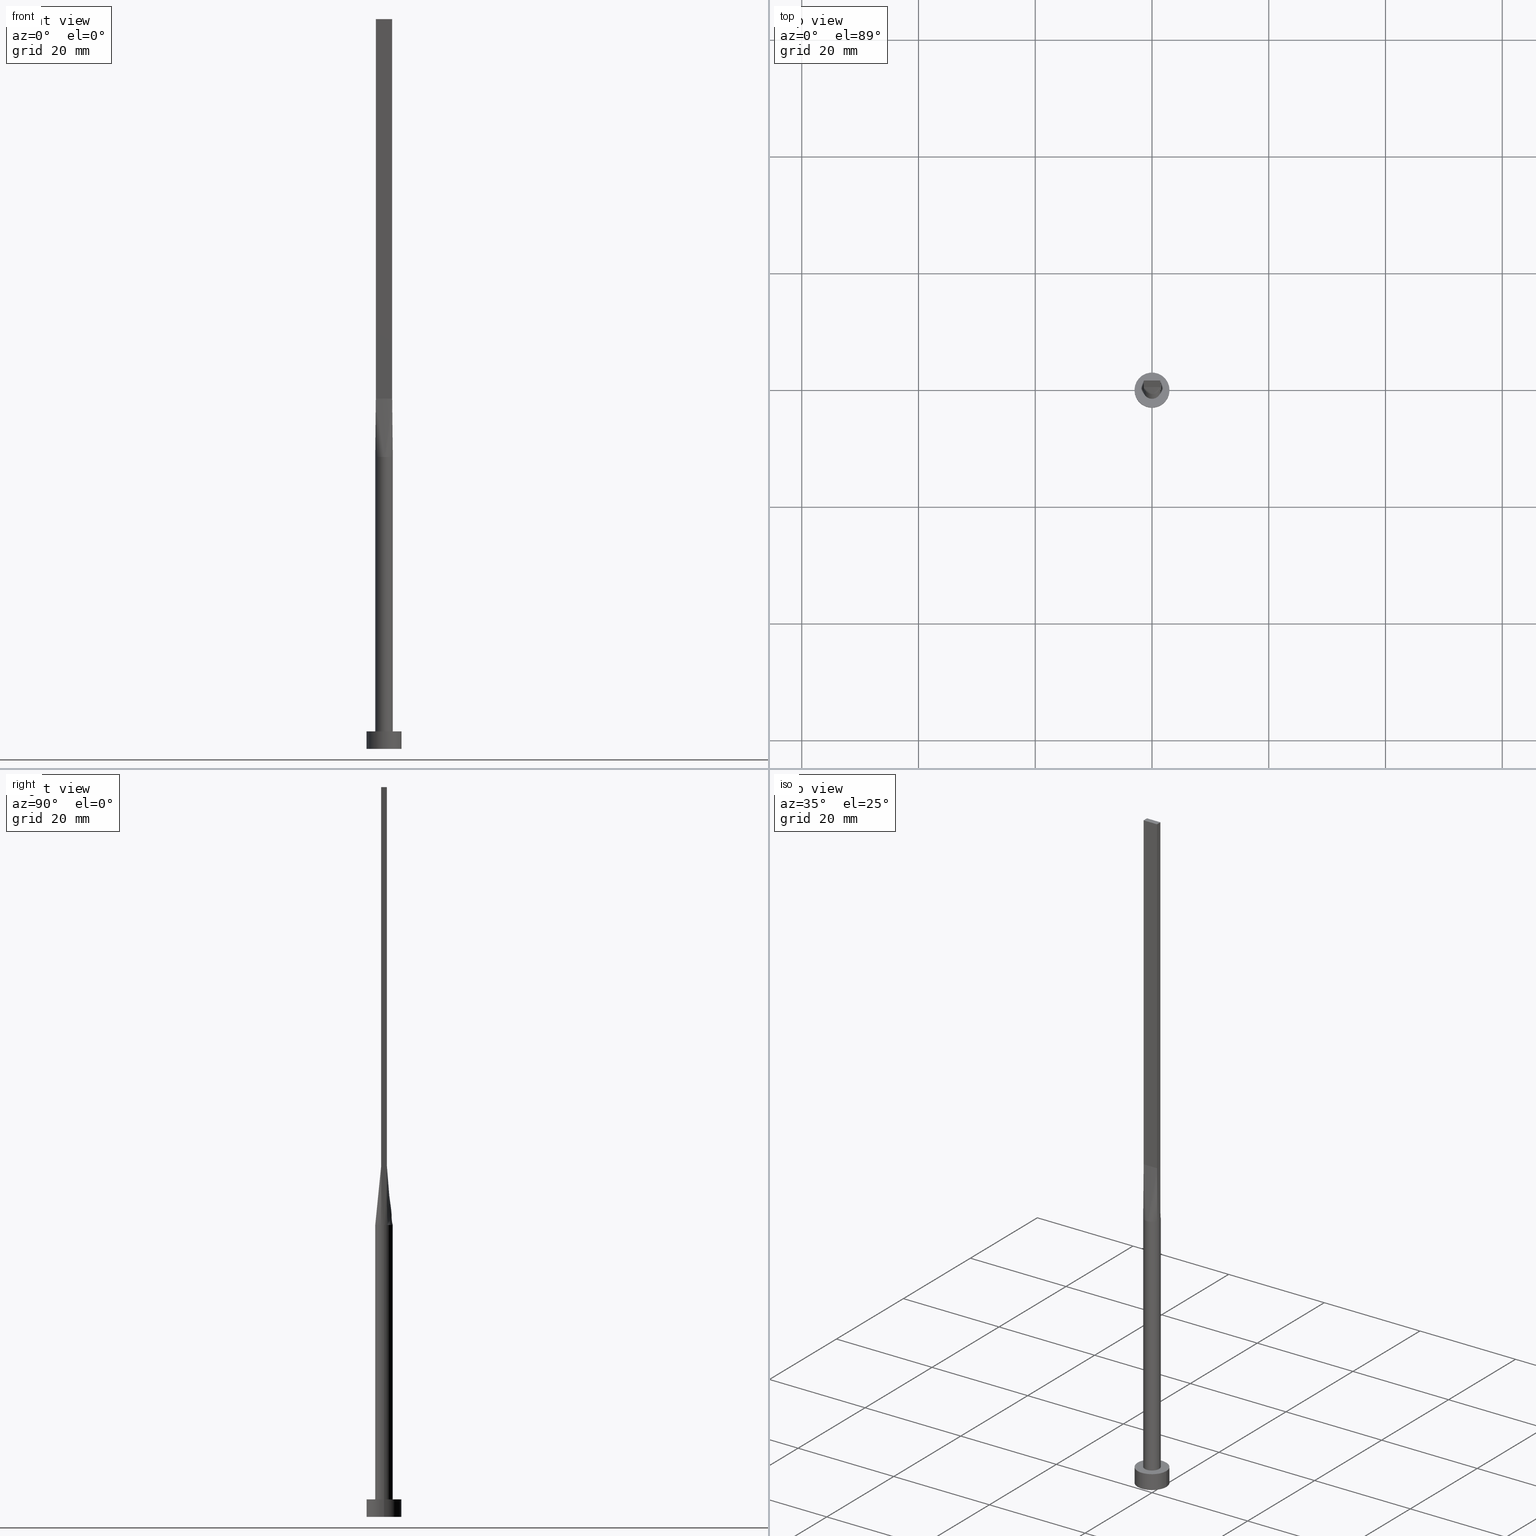
[diagram: canonical four-view strip — front | top / right | iso, engineering-drawing reading convention]
A machine part, canonical four-view strip (front | top / right | iso — engineering-drawing reading convention). The complete STEP part file that produces these views, byte-faithful:
ISO-10303-21;
HEADER;
FILE_DESCRIPTION (( 'STEP AP203' ),
    '1' );
FILE_NAME ('94df.STEP',
    '2026-02-12T09:07:50',
    ( '' ),
    ( '' ),
    'SwSTEP 2.0',
    'SolidWorks 2019',
    '' );
FILE_SCHEMA (( 'CONFIG_CONTROL_DESIGN' ));
ENDSEC;

DATA;
#1 = PRODUCT_DEFINITION ( 'NEZN�M�', '', #343, #422 ) ;
#2 = ORIENTED_EDGE ( 'NONE', *, *, #560, .T. ) ;
#3 = CARTESIAN_POINT ( 'NONE',  ( 3.000000000000000444, 3.673940397442060361E-16, 0.000000000000000000 ) ) ;
#4 = EDGE_CURVE ( 'NONE', #371, #410, #100, .T. ) ;
#5 = CARTESIAN_POINT ( 'NONE',  ( 0.000000000000000000, 0.000000000000000000, 3.000000000000000000 ) ) ;
#6 = DIRECTION ( 'NONE',  ( -0.000000000000000000, -0.000000000000000000, -1.000000000000000000 ) ) ;
#7 = DIRECTION ( 'NONE',  ( -2.168404344971009361E-16, -1.000000000000000000, 0.000000000000000000 ) ) ;
#8 = DIRECTION ( 'NONE',  ( 0.000000000000000000, 0.000000000000000000, 1.000000000000000000 ) ) ;
#9 = B_SPLINE_SURFACE_WITH_KNOTS ( 'NONE', 3, 1, ( 
 ( #412, #142 ),
 ( #237, #556 ),
 ( #18, #155 ),
 ( #194, #285 ),
 ( #373, #550 ),
 ( #58, #415 ) ),
 .UNSPECIFIED., .F., .F., .F.,
 ( 4, 2, 4 ),
 ( 2, 2 ),
 ( 0.000000000000000000, 0.5000000000000000000, 1.000000000000000000 ),
 ( 0.000000000000000000, 1.000000000000000000 ),
 .UNSPECIFIED. ) ;
#10 = PLANE ( 'NONE',  #75 ) ;
#11 = CARTESIAN_POINT ( 'NONE',  ( 0.000000000000000000, 0.000000000000000000, 50.00000000000000000 ) ) ;
#12 = VECTOR ( 'NONE', #84, 1000.000000000000114 ) ;
#13 = DIRECTION ( 'NONE',  ( -1.000000000000000000, 7.744301232039316681E-17, 0.000000000000000000 ) ) ;
#14 = DATE_TIME_ROLE ( 'classification_date' ) ;
#15 = VERTEX_POINT ( 'NONE', #366 ) ;
#16 = ORIENTED_EDGE ( 'NONE', *, *, #116, .T. ) ;
#17 = CARTESIAN_POINT ( 'NONE',  ( -1.399999999999999689, 0.3333333333333335369, 60.00000000000000000 ) ) ;
#18 = CARTESIAN_POINT ( 'NONE',  ( 1.500000000000000222, -0.1732137494637014941, 50.00000000000000711 ) ) ;
#19 = CARTESIAN_POINT ( 'NONE',  ( 0.000000000000000000, 0.000000000000000000, 50.00000000000000000 ) ) ;
#20 = CARTESIAN_POINT ( 'NONE',  ( 0.8182264876570948253, 1.266912425724810110, 50.00000000000000711 ) ) ;
#21 = DIRECTION ( 'NONE',  ( 1.000000000000000000, 0.000000000000000000, 0.000000000000000000 ) ) ;
#22 = DIRECTION ( 'NONE',  ( 0.000000000000000000, 0.000000000000000000, 1.000000000000000000 ) ) ;
#23 = ORIENTED_EDGE ( 'NONE', *, *, #517, .F. ) ;
#24 = CARTESIAN_POINT ( 'NONE',  ( 0.2333333333333338089, 0.5000000000000002220, 60.00000000000000000 ) ) ;
#25 = EDGE_CURVE ( 'NONE', #80, #444, #497, .T. ) ;
#26 = ORIENTED_EDGE ( 'NONE', *, *, #44, .T. ) ;
#27 = DIRECTION ( 'NONE',  ( 0.000000000000000000, 0.000000000000000000, 1.000000000000000000 ) ) ;
#28 = CARTESIAN_POINT ( 'NONE',  ( -1.161819288130433891, 0.9587178835757675932, 50.00000000000002842 ) ) ;
#29 = EDGE_LOOP ( 'NONE', ( #426, #453, #563, #175 ) ) ;
#30 = DIRECTION ( 'NONE',  ( -0.001261285608005553900, -0.0004504591457162553103, -0.9999991031221843185 ) ) ;
#31 = CARTESIAN_POINT ( 'NONE',  ( -1.373020107211261331, 0.6153643240040217455, 50.00000000000000711 ) ) ;
#32 = B_SPLINE_CURVE_WITH_KNOTS ( 'NONE', 3,
 ( #299, #473, #255, #524, #214, #78, #119, #73, #40, #301, #313, #572, #41, #358, #220, #177, #176, #570 ),
 .UNSPECIFIED., .F., .F.,
 ( 4, 2, 2, 2, 2, 2, 2, 2, 4 ),
 ( 0.000000000000000000, 0.1250000000000000000, 0.2500000000000000000, 0.3750000000000000000, 0.5000000000000000000, 0.6250000000000000000, 0.7500000000000000000, 0.8750000000000000000, 1.000000000000000000 ),
 .UNSPECIFIED. ) ;
#33 = VECTOR ( 'NONE', #529, 1000.000000000000000 ) ;
#34 = CARTESIAN_POINT ( 'NONE',  ( 0.1166666666666654889, -0.4999999999999995559, 60.00000000000000000 ) ) ;
#35 = CC_DESIGN_PERSON_AND_ORGANIZATION_ASSIGNMENT ( #329, #555, ( #138 ) ) ;
#36 = CARTESIAN_POINT ( 'NONE',  ( -1.316960349798174557, -0.7311494208568978248, 50.00000000000002842 ) ) ;
#37 = ORIENTED_EDGE ( 'NONE', *, *, #448, .T. ) ;
#38 = PLANE ( 'NONE',  #295 ) ;
#39 = CARTESIAN_POINT ( 'NONE',  ( 1.373020107211260665, -0.6153643240040224116, 50.00000000000000711 ) ) ;
#40 = CARTESIAN_POINT ( 'NONE',  ( 0.1761797990592590679, 1.500000000000000222, 50.00000000000000000 ) ) ;
#41 = CARTESIAN_POINT ( 'NONE',  ( -0.8182264876570950474, 1.266912425724810554, 50.00000000000000000 ) ) ;
#42 = DIRECTION ( 'NONE',  ( 0.000000000000000000, 0.000000000000000000, 1.000000000000000000 ) ) ;
#43 = CARTESIAN_POINT ( 'NONE',  ( -1.399999999999999911, -0.4999999999999995559, 125.0000000000000000 ) ) ;
#44 = EDGE_CURVE ( 'NONE', #80, #152, #56, .T. ) ;
#45 = CIRCLE ( 'NONE', #90, 1.500000000000000222 ) ;
#46 = LINE ( 'NONE', #269, #526 ) ;
#47 = CC_DESIGN_PERSON_AND_ORGANIZATION_ASSIGNMENT ( #150, #508, ( #1 ) ) ;
#48 = ORIENTED_EDGE ( 'NONE', *, *, #478, .T. ) ;
#49 = LINE ( 'NONE', #316, #309 ) ;
#50 = FACE_OUTER_BOUND ( 'NONE', #557, .T. ) ;
#51 = DIRECTION ( 'NONE',  ( -0.000000000000000000, -0.000000000000000000, -1.000000000000000000 ) ) ;
#52 = PERSON_AND_ORGANIZATION_ROLE ( 'classification_officer' ) ;
#53 = AXIS2_PLACEMENT_3D ( 'NONE', #67, #302, #250 ) ;
#54 = EDGE_LOOP ( 'NONE', ( #533, #512, #225, #340 ) ) ;
#55 = CARTESIAN_POINT ( 'NONE',  ( -1.399999999999999689, 0.5000000000000002220, 125.0000000000000000 ) ) ;
#56 = CIRCLE ( 'NONE', #312, 1.500000000000000222 ) ;
#57 = APPLICATION_PROTOCOL_DEFINITION ( 'international standard', 'config_control_design', 1994, #267 ) ;
#58 = CARTESIAN_POINT ( 'NONE',  ( 1.412612867392256222, 0.5045045954972349200, 50.00000000000000000 ) ) ;
#59 = ORIENTED_EDGE ( 'NONE', *, *, #122, .F. ) ;
#60 = CARTESIAN_POINT ( 'NONE',  ( 1.373020107211261109, 0.6153643240040217455, 50.00000000000000000 ) ) ;
#61 = ADVANCED_FACE ( 'NONE', ( #480 ), #38, .F. ) ;
#62 = VECTOR ( 'NONE', #488, 1000.000000000000000 ) ;
#63 = DIRECTION ( 'NONE',  ( 0.000000000000000000, 0.000000000000000000, 1.000000000000000000 ) ) ;
#64 = EDGE_LOOP ( 'NONE', ( #387, #554, #400, #112 ) ) ;
#65 = CARTESIAN_POINT ( 'NONE',  ( -0.3520402531411749858, 1.468082505288407891, 50.00000000000000711 ) ) ;
#66 = CARTESIAN_POINT ( 'NONE',  ( 1.283333333333333215, 0.5000000000000002220, 60.00000000000000711 ) ) ;
#67 = CARTESIAN_POINT ( 'NONE',  ( -1.399999999999999689, 0.5000000000000002220, 125.0000000000000000 ) ) ;
#68 = EDGE_CURVE ( 'NONE', #208, #371, #209, .T. ) ;
#69 = ORIENTED_EDGE ( 'NONE', *, *, #353, .F. ) ;
#70 = CARTESIAN_POINT ( 'NONE',  ( 0.1761797990592590679, 1.500000000000000222, 50.00000000000000000 ) ) ;
#71 = FACE_OUTER_BOUND ( 'NONE', #188, .T. ) ;
#72 = EDGE_CURVE ( 'NONE', #274, #539, #256, .T. ) ;
#73 = CARTESIAN_POINT ( 'NONE',  ( 0.3520402531411749303, 1.468082505288407447, 49.99999999999999289 ) ) ;
#74 = VECTOR ( 'NONE', #270, 1000.000000000000000 ) ;
#75 = AXIS2_PLACEMENT_3D ( 'NONE', #451, #408, #13 ) ;
#76 = CARTESIAN_POINT ( 'NONE',  ( -0.3520402531411755964, -1.468082505288407447, 49.99999999999999289 ) ) ;
#77 = CARTESIAN_POINT ( 'NONE',  ( -1.283333333333333437, -0.4999999999999995559, 60.00000000000000711 ) ) ;
#78 = CARTESIAN_POINT ( 'NONE',  ( 0.8182264876570948253, 1.266912425724810110, 50.00000000000000711 ) ) ;
#79 = APPROVAL_PERSON_ORGANIZATION ( #414, #421, #191 ) ;
#80 = VERTEX_POINT ( 'NONE', #481 ) ;
#81 = CARTESIAN_POINT ( 'NONE',  ( -1.399999999999999911, -0.4999999999999995559, 60.00000000000000711 ) ) ;
#82 = ORIENTED_EDGE ( 'NONE', *, *, #435, .T. ) ;
#83 = PLANE ( 'NONE',  #318 ) ;
#84 = DIRECTION ( 'NONE',  ( -0.001261285608005532216, 0.0004504591457163203624, 0.9999991031221843185 ) ) ;
#85 = MANIFOLD_SOLID_BREP ( 'P�idat vysunut�m5', #190 ) ;
#86 = ORIENTED_EDGE ( 'NONE', *, *, #442, .T. ) ;
#87 = DIRECTION ( 'NONE',  ( -1.000000000000000000, 0.000000000000000000, 0.000000000000000000 ) ) ;
#88 = FACE_OUTER_BOUND ( 'NONE', #235, .T. ) ;
#89 = ORIENTED_EDGE ( 'NONE', *, *, #448, .F. ) ;
#90 = AXIS2_PLACEMENT_3D ( 'NONE', #19, #196, #287 ) ;
#91 = ORIENTED_EDGE ( 'NONE', *, *, #68, .T. ) ;
#92 = CARTESIAN_POINT ( 'NONE',  ( 1.399999999999999689, 0.5000000000000002220, 60.00000000000000711 ) ) ;
#93 = DIRECTION ( 'NONE',  ( 2.168404344971008621E-16, -1.000000000000000000, 0.000000000000000000 ) ) ;
#94 = APPROVAL_DATE_TIME ( #409, #199 ) ;
#95 = ORIENTED_EDGE ( 'NONE', *, *, #468, .F. ) ;
#96 = ORIENTED_EDGE ( 'NONE', *, *, #99, .T. ) ;
#97 = CARTESIAN_POINT ( 'NONE',  ( -1.469173953365107144, -0.3461335547732520834, 50.00000000000000711 ) ) ;
#98 = PERSON_AND_ORGANIZATION_ROLE ( 'creator' ) ;
#99 = EDGE_CURVE ( 'NONE', #444, #15, #536, .T. ) ;
#100 = LINE ( 'NONE', #449, #459 ) ;
#101 = DIRECTION ( 'NONE',  ( -0.000000000000000000, -0.000000000000000000, -1.000000000000000000 ) ) ;
#102 = VECTOR ( 'NONE', #440, 1000.000000000000000 ) ;
#103 = ORIENTED_EDGE ( 'NONE', *, *, #385, .T. ) ;
#104 = DATE_AND_TIME ( #290, #518 ) ;
#105 = COORDINATED_UNIVERSAL_TIME_OFFSET ( 1, 0, .AHEAD. ) ;
#106 = COORDINATED_UNIVERSAL_TIME_OFFSET ( 1, 0, .AHEAD. ) ;
#107 = CARTESIAN_POINT ( 'NONE',  ( 3.000000000000000444, 3.673940397442060361E-16, 3.000000000000000000 ) ) ;
#108 = CARTESIAN_POINT ( 'NONE',  ( 0.1166666666666671820, 0.5000000000000002220, 60.00000000000000000 ) ) ;
#109 = APPLICATION_PROTOCOL_DEFINITION ( 'international standard', 'config_control_design', 1994, #323 ) ;
#110 = ORIENTED_EDGE ( 'NONE', *, *, #99, .F. ) ;
#111 = PLANE ( 'NONE',  #126 ) ;
#112 = ORIENTED_EDGE ( 'NONE', *, *, #338, .T. ) ;
#113 = CARTESIAN_POINT ( 'NONE',  ( 0.000000000000000000, 0.000000000000000000, 3.000000000000000000 ) ) ;
#114 = AXIS2_PLACEMENT_3D ( 'NONE', #123, #6, #542 ) ;
#115 = CARTESIAN_POINT ( 'NONE',  ( 0.9333333333333333481, 0.5000000000000002220, 60.00000000000000000 ) ) ;
#116 = EDGE_CURVE ( 'NONE', #192, #15, #310, .T. ) ;
#117 = CARTESIAN_POINT ( 'NONE',  ( -1.399999999999999689, 0.5000000000000002220, 125.0000000000000000 ) ) ;
#118 = APPROVAL ( #561, 'NEUR�EN�' ) ;
#119 = CARTESIAN_POINT ( 'NONE',  ( 0.6732153042498577600, 1.351288176626052717, 50.00000000000000711 ) ) ;
#120 = AXIS2_PLACEMENT_3D ( 'NONE', #125, #262, #438 ) ;
#121 = CARTESIAN_POINT ( 'NONE',  ( -3.000000000000000444, 0.000000000000000000, 3.000000000000000000 ) ) ;
#122 = EDGE_CURVE ( 'NONE', #522, #80, #319, .T. ) ;
#123 = CARTESIAN_POINT ( 'NONE',  ( 0.000000000000000000, 0.000000000000000000, 50.00000000000000000 ) ) ;
#124 = DIRECTION ( 'NONE',  ( -0.000000000000000000, -0.000000000000000000, -1.000000000000000000 ) ) ;
#125 = CARTESIAN_POINT ( 'NONE',  ( 0.000000000000000000, 0.000000000000000000, 3.000000000000000000 ) ) ;
#126 = AXIS2_PLACEMENT_3D ( 'NONE', #515, #339, #513 ) ;
#127 = DIRECTION ( 'NONE',  ( 0.000000000000000000, -0.000000000000000000, -1.000000000000000000 ) ) ;
#128 = CARTESIAN_POINT ( 'NONE',  ( 0.8166666666666658747, -0.4999999999999997780, 60.00000000000000000 ) ) ;
#129 = ADVANCED_FACE ( 'NONE', ( #436, #487 ), #83, .T. ) ;
#130 = UNCERTAINTY_MEASURE_WITH_UNIT (LENGTH_MEASURE( 1.000000000000000082E-05 ), #146, 'distance_accuracy_value', 'NONE');
#131 = LINE ( 'NONE', #55, #233 ) ;
#132 = CARTESIAN_POINT ( 'NONE',  ( -1.412629890847167724, -0.5045107419440655327, 50.00000000000000000 ) ) ;
#133 = EDGE_LOOP ( 'NONE', ( #379, #59, #254, #359, #16, #82 ) ) ;
#134 = DIRECTION ( 'NONE',  ( -0.000000000000000000, -0.000000000000000000, -1.000000000000000000 ) ) ;
#135 = CC_DESIGN_APPROVAL ( #421, ( #390 ) ) ;
#136 = CARTESIAN_POINT ( 'NONE',  ( -1.399999999999999689, -0.1666666666666663521, 60.00000000000000000 ) ) ;
#137 = ADVANCED_FACE ( 'NONE', ( #575 ), #173, .T. ) ;
#138 = PRODUCT ( '94df', '94df', '', ( #201 ) ) ;
#139 = APPROVAL_STATUS ( 'not_yet_approved' ) ;
#140 = ORIENTED_EDGE ( 'NONE', *, *, #517, .T. ) ;
#141 = CARTESIAN_POINT ( 'NONE',  ( 1.500000000000000222, 1.836970198721030181E-16, 3.000000000000000000 ) ) ;
#142 = CARTESIAN_POINT ( 'NONE',  ( 1.399999999999999911, -0.4999999999999997780, 60.00000000000000711 ) ) ;
#143 = DIRECTION ( 'NONE',  ( 1.000000000000000000, 0.000000000000000000, 0.000000000000000000 ) ) ;
#144 = ADVANCED_FACE ( 'NONE', ( #503 ), #321, .F. ) ;
#145 = DIRECTION ( 'NONE',  ( -0.001261285608005553900, -0.0004504591457162878364, 0.9999991031221843185 ) ) ;
#146 =( LENGTH_UNIT ( ) NAMED_UNIT ( * ) SI_UNIT ( .MILLI., .METRE. ) );
#147 = ADVANCED_BREP_SHAPE_REPRESENTATION ( '94df', ( #85, #558 ), #474 ) ;
#148 = CARTESIAN_POINT ( 'NONE',  ( 1.399999999999999911, -0.4999999999999997780, 60.00000000000000711 ) ) ;
#149 = CALENDAR_DATE ( 2026, 12, 2 ) ;
#150 = PERSON_AND_ORGANIZATION ( #273, #200 ) ;
#151 = DIRECTION ( 'NONE',  ( 0.000000000000000000, 0.000000000000000000, 1.000000000000000000 ) ) ;
#152 = VERTEX_POINT ( 'NONE', #447 ) ;
#153 = CC_DESIGN_DATE_AND_TIME_ASSIGNMENT ( #185, #14, ( #390 ) ) ;
#154 = APPROVAL_ROLE ( '' ) ;
#155 = CARTESIAN_POINT ( 'NONE',  ( 1.399999999999999689, -0.1666666666666666019, 60.00000000000000000 ) ) ;
#156 = ORIENTED_EDGE ( 'NONE', *, *, #560, .F. ) ;
#157 = CARTESIAN_POINT ( 'NONE',  ( -0.2333333333333328374, 0.5000000000000002220, 60.00000000000000000 ) ) ;
#158 = ORIENTED_EDGE ( 'NONE', *, *, #478, .F. ) ;
#159 = FACE_OUTER_BOUND ( 'NONE', #29, .T. ) ;
#160 = AXIS2_PLACEMENT_3D ( 'NONE', #242, #22, #180 ) ;
#161 = ORIENTED_EDGE ( 'NONE', *, *, #548, .T. ) ;
#162 = CARTESIAN_POINT ( 'NONE',  ( 1.412612867392256444, 0.5045045954972344759, 50.00000000000000000 ) ) ;
#163 = ADVANCED_FACE ( 'NONE', ( #50 ), #10, .F. ) ;
#164 = ORIENTED_EDGE ( 'NONE', *, *, #368, .F. ) ;
#165 = CARTESIAN_POINT ( 'NONE',  ( -1.062433464748102407, 1.070418989248103525, 49.99999999999998579 ) ) ;
#166 = EDGE_CURVE ( 'NONE', #219, #186, #399, .T. ) ;
#167 = CARTESIAN_POINT ( 'NONE',  ( 1.399999999999999689, 0.5000000000000002220, 60.00000000000000711 ) ) ;
#168 = CARTESIAN_POINT ( 'NONE',  ( 1.316960349798174335, -0.7311494208568987130, 50.00000000000003553 ) ) ;
#169 = VECTOR ( 'NONE', #525, 1000.000000000000000 ) ;
#170 = CARTESIAN_POINT ( 'NONE',  ( 0.1761797990592584850, -1.499999999999999556, 50.00000000000000711 ) ) ;
#171 = PLANE ( 'NONE',  #53 ) ;
#172 = DIRECTION ( 'NONE',  ( 0.000000000000000000, -1.000000000000000000, 0.000000000000000000 ) ) ;
#173 = CYLINDRICAL_SURFACE ( 'NONE', #114, 1.500000000000000222 ) ;
#174 = CARTESIAN_POINT ( 'NONE',  ( 1.283333333333332993, -0.4999999999999997780, 60.00000000000000000 ) ) ;
#175 = ORIENTED_EDGE ( 'NONE', *, *, #433, .F. ) ;
#176 = CARTESIAN_POINT ( 'NONE',  ( -1.373020107211261331, 0.6153643240040217455, 50.00000000000000711 ) ) ;
#177 = CARTESIAN_POINT ( 'NONE',  ( -1.316960349798174557, 0.7311494208568980468, 50.00000000000003553 ) ) ;
#178 = AXIS2_PLACEMENT_3D ( 'NONE', #369, #457, #143 ) ;
#179 = CARTESIAN_POINT ( 'NONE',  ( -1.399999999999999689, 0.5000000000000002220, 60.00000000000000711 ) ) ;
#180 = DIRECTION ( 'NONE',  ( 1.000000000000000000, 0.000000000000000000, 0.000000000000000000 ) ) ;
#181 = ORIENTED_EDGE ( 'NONE', *, *, #454, .F. ) ;
#182 = LINE ( 'NONE', #92, #62 ) ;
#183 = DIRECTION ( 'NONE',  ( 1.000000000000000000, 0.000000000000000000, -0.000000000000000000 ) ) ;
#184 = VECTOR ( 'NONE', #134, 1000.000000000000000 ) ;
#185 = DATE_AND_TIME ( #452, #317 ) ;
#186 = VERTEX_POINT ( 'NONE', #413 ) ;
#187 = CIRCLE ( 'NONE', #160, 1.500000000000000222 ) ;
#188 = EDGE_LOOP ( 'NONE', ( #291, #95, #423, #161 ) ) ;
#189 = FACE_OUTER_BOUND ( 'NONE', #228, .T. ) ;
#190 = CLOSED_SHELL ( 'NONE', ( #493, #349, #521, #129, #327, #137, #425, #213, #579, #322, #61, #247, #163, #144, #553 ) ) ;
#191 = APPROVAL_ROLE ( '' ) ;
#192 = VERTEX_POINT ( 'NONE', #551 ) ;
#193 = CARTESIAN_POINT ( 'NONE',  ( 0.000000000000000000, 0.000000000000000000, 125.0000000000000000 ) ) ;
#194 = CARTESIAN_POINT ( 'NONE',  ( 1.499999999999999556, 0.1732137494637011610, 49.99999999999999289 ) ) ;
#195 = COORDINATED_UNIVERSAL_TIME_OFFSET ( 1, 0, .AHEAD. ) ;
#196 = DIRECTION ( 'NONE',  ( 0.000000000000000000, 0.000000000000000000, 1.000000000000000000 ) ) ;
#197 = VERTEX_POINT ( 'NONE', #148 ) ;
#198 = CARTESIAN_POINT ( 'NONE',  ( -1.412612867392256444, 0.5045045954972340319, 50.00000000000000000 ) ) ;
#199 = APPROVAL ( #139, 'NEUR�EN�' ) ;
#200 = ORGANIZATION ( 'NEUR�EN�', 'NEUR�EN�', '' ) ;
#201 = MECHANICAL_CONTEXT ( 'NONE', #267, 'mechanical' ) ;
#202 = VERTEX_POINT ( 'NONE', #132 ) ;
#203 = CARTESIAN_POINT ( 'NONE',  ( 1.166666666666666519, 0.5000000000000002220, 60.00000000000000711 ) ) ;
#204 = CARTESIAN_POINT ( 'NONE',  ( 0.000000000000000000, 0.000000000000000000, 3.000000000000000000 ) ) ;
#205 = CARTESIAN_POINT ( 'NONE',  ( -1.316960349798174557, 0.7311494208568980468, 50.00000000000003553 ) ) ;
#206 = CARTESIAN_POINT ( 'NONE',  ( -1.166666666666666519, 0.5000000000000002220, 60.00000000000000000 ) ) ;
#207 = VECTOR ( 'NONE', #124, 1000.000000000000000 ) ;
#208 = VERTEX_POINT ( 'NONE', #490 ) ;
#209 = LINE ( 'NONE', #296, #246 ) ;
#210 = CARTESIAN_POINT ( 'NONE',  ( -0.8182264876570950474, 1.266912425724810554, 50.00000000000000000 ) ) ;
#211 = AXIS2_PLACEMENT_3D ( 'NONE', #300, #475, #571 ) ;
#212 = CARTESIAN_POINT ( 'NONE',  ( 0.4666666666666655638, -0.4999999999999995559, 60.00000000000000000 ) ) ;
#213 = ADVANCED_FACE ( 'NONE', ( #88 ), #9, .T. ) ;
#214 = CARTESIAN_POINT ( 'NONE',  ( 1.062433464748102407, 1.070418989248103525, 49.99999999999999289 ) ) ;
#215 = AXIS2_PLACEMENT_3D ( 'NONE', #113, #382, #523 ) ;
#216 = DIRECTION ( 'NONE',  ( 1.000000000000000000, 0.000000000000000000, -0.000000000000000000 ) ) ;
#217 = CARTESIAN_POINT ( 'NONE',  ( -0.8182264876570952694, -1.266912425724809665, 50.00000000000000711 ) ) ;
#218 = CARTESIAN_POINT ( 'NONE',  ( -0.4666666666666677288, -0.4999999999999995559, 60.00000000000000000 ) ) ;
#219 = VERTEX_POINT ( 'NONE', #107 ) ;
#220 = CARTESIAN_POINT ( 'NONE',  ( -1.161819288130433891, 0.9587178835757675932, 50.00000000000002842 ) ) ;
#221 = EDGE_CURVE ( 'NONE', #281, #192, #45, .T. ) ;
#222 = EDGE_LOOP ( 'NONE', ( #293, #544, #96, #469, #328, #363 ) ) ;
#223 = CYLINDRICAL_SURFACE ( 'NONE', #356, 1.500000000000000222 ) ;
#224 = AXIS2_PLACEMENT_3D ( 'NONE', #193, #362, #183 ) ;
#225 = ORIENTED_EDGE ( 'NONE', *, *, #442, .F. ) ;
#226 = LINE ( 'NONE', #179, #430 ) ;
#227 = EDGE_CURVE ( 'NONE', #202, #522, #187, .T. ) ;
#228 = EDGE_LOOP ( 'NONE', ( #527, #394, #495, #315 ) ) ;
#229 = CARTESIAN_POINT ( 'NONE',  ( -1.412612867392256444, 0.5045045954972343649, 50.00000000000000000 ) ) ;
#230 = DATE_TIME_ROLE ( 'creation_date' ) ;
#231 = CARTESIAN_POINT ( 'NONE',  ( 0.000000000000000000, 0.000000000000000000, 50.00000000000000000 ) ) ;
#232 = LINE ( 'NONE', #402, #74 ) ;
#233 = VECTOR ( 'NONE', #314, 1000.000000000000000 ) ;
#234 = APPROVAL_ROLE ( '' ) ;
#235 = EDGE_LOOP ( 'NONE', ( #248, #26, #383, #23, #337 ) ) ;
#236 = CARTESIAN_POINT ( 'NONE',  ( -1.469173953365106922, 0.3461335547732524165, 50.00000000000000711 ) ) ;
#237 = CARTESIAN_POINT ( 'NONE',  ( 1.469173953365106700, -0.3461335547732530271, 50.00000000000000711 ) ) ;
#238 = APPROVAL_DATE_TIME ( #104, #118 ) ;
#239 = LINE ( 'NONE', #429, #456 ) ;
#240 = EDGE_CURVE ( 'NONE', #219, #539, #538, .T. ) ;
#241 = CARTESIAN_POINT ( 'NONE',  ( -3.000000000000000444, 0.000000000000000000, 0.000000000000000000 ) ) ;
#242 = CARTESIAN_POINT ( 'NONE',  ( 0.000000000000000000, 0.000000000000000000, 50.00000000000000000 ) ) ;
#243 = FACE_OUTER_BOUND ( 'NONE', #519, .T. ) ;
#244 = LOCAL_TIME ( 10, 7, 50.00000000000000000, #105 ) ;
#245 = CARTESIAN_POINT ( 'NONE',  ( -1.406306433696128178, -0.5022522977486166829, 55.00000000000000711 ) ) ;
#246 = VECTOR ( 'NONE', #303, 1000.000000000000000 ) ;
#247 = ADVANCED_FACE ( 'NONE', ( #71 ), #171, .F. ) ;
#248 = ORIENTED_EDGE ( 'NONE', *, *, #122, .T. ) ;
#249 = LINE ( 'NONE', #245, #484 ) ;
#250 = DIRECTION ( 'NONE',  ( 2.168404344971009115E-16, 1.000000000000000000, 0.000000000000000000 ) ) ;
#251 = ORIENTED_EDGE ( 'NONE', *, *, #265, .F. ) ;
#252 = CARTESIAN_POINT ( 'NONE',  ( -0.8166666666666664298, 0.5000000000000002220, 60.00000000000000000 ) ) ;
#253 = VECTOR ( 'NONE', #428, 1000.000000000000000 ) ;
#254 = ORIENTED_EDGE ( 'NONE', *, *, #227, .F. ) ;
#255 = CARTESIAN_POINT ( 'NONE',  ( 1.316960349798174557, 0.7311494208568982689, 50.00000000000002842 ) ) ;
#256 = CIRCLE ( 'NONE', #211, 3.000000000000000444 ) ;
#257 = CARTESIAN_POINT ( 'NONE',  ( -0.1761797990592596230, -1.500000000000000000, 50.00000000000000000 ) ) ;
#258 = CC_DESIGN_PERSON_AND_ORGANIZATION_ASSIGNMENT ( #404, #52, ( #390 ) ) ;
#259 = CARTESIAN_POINT ( 'NONE',  ( -1.412612867392256444, -0.5045045954972339208, 50.00000000000000000 ) ) ;
#260 = APPROVAL_PERSON_ORGANIZATION ( #336, #118, #154 ) ;
#261 = CARTESIAN_POINT ( 'NONE',  ( 0.000000000000000000, 0.000000000000000000, 50.00000000000000000 ) ) ;
#262 = DIRECTION ( 'NONE',  ( 0.000000000000000000, 0.000000000000000000, 1.000000000000000000 ) ) ;
#263 = LOCAL_TIME ( 10, 7, 50.00000000000000000, #106 ) ;
#264 = VECTOR ( 'NONE', #51, 1000.000000000000000 ) ;
#265 = EDGE_CURVE ( 'NONE', #333, #298, #477, .T. ) ;
#266 = CARTESIAN_POINT ( 'NONE',  ( 1.399999999999999911, -0.4999999999999997780, 125.0000000000000000 ) ) ;
#267 = APPLICATION_CONTEXT ( 'configuration controlled 3d designs of mechanical parts and assemblies' ) ;
#268 = DIRECTION ( 'NONE',  ( 0.000000000000000000, 0.000000000000000000, 1.000000000000000000 ) ) ;
#269 = CARTESIAN_POINT ( 'NONE',  ( 1.399999999999999911, -0.4999999999999997780, 125.0000000000000000 ) ) ;
#270 = DIRECTION ( 'NONE',  ( 1.000000000000000000, -7.744301232039317914E-17, 0.000000000000000000 ) ) ;
#271 = EDGE_CURVE ( 'NONE', #152, #284, #460, .T. ) ;
#272 = ORIENTED_EDGE ( 'NONE', *, *, #338, .F. ) ;
#273 = PERSON ( 'NEUR�EN�', 'NEUR�EN�', 'NEUR�EN�', ('NEUR�EN�'), ('NEUR�EN�'), ('NEUR�EN�') ) ;
#274 = VERTEX_POINT ( 'NONE', #241 ) ;
#275 = CARTESIAN_POINT ( 'NONE',  ( 1.406306433696127955, -0.5022522977486173490, 55.00000000000000711 ) ) ;
#276 = SHAPE_DEFINITION_REPRESENTATION ( #351, #147 ) ;
#277 = EDGE_LOOP ( 'NONE', ( #461, #305, #164, #251, #69 ) ) ;
#278 = CARTESIAN_POINT ( 'NONE',  ( 1.500000000000000222, 1.836970198721030181E-16, 50.00000000000000000 ) ) ;
#279 = CARTESIAN_POINT ( 'NONE',  ( -1.412612867392256444, -0.5045045954972340319, 50.00000000000000000 ) ) ;
#280 = COORDINATED_UNIVERSAL_TIME_OFFSET ( 1, 0, .AHEAD. ) ;
#281 = VERTEX_POINT ( 'NONE', #569 ) ;
#282 = CARTESIAN_POINT ( 'NONE',  ( -1.499999999999999556, -0.1732137494637007724, 49.99999999999999289 ) ) ;
#283 = AXIS2_PLACEMENT_3D ( 'NONE', #5, #360, #443 ) ;
#284 = VERTEX_POINT ( 'NONE', #167 ) ;
#285 = CARTESIAN_POINT ( 'NONE',  ( 1.399999999999999689, 0.1666666666666667129, 60.00000000000000000 ) ) ;
#286 = AXIS2_PLACEMENT_3D ( 'NONE', #204, #27, #380 ) ;
#287 = DIRECTION ( 'NONE',  ( 1.000000000000000000, 0.000000000000000000, 0.000000000000000000 ) ) ;
#288 = CARTESIAN_POINT ( 'NONE',  ( -0.6732153042498576490, 1.351288176626052495, 49.99999999999999289 ) ) ;
#289 = APPROVAL_DATE_TIME ( #370, #421 ) ;
#290 = CALENDAR_DATE ( 2026, 12, 2 ) ;
#291 = ORIENTED_EDGE ( 'NONE', *, *, #265, .T. ) ;
#292 = DIRECTION ( 'NONE',  ( 0.001261285608005575801, -0.0004504591457162011002, 0.9999991031221843185 ) ) ;
#293 = ORIENTED_EDGE ( 'NONE', *, *, #44, .F. ) ;
#294 = LINE ( 'NONE', #467, #419 ) ;
#295 = AXIS2_PLACEMENT_3D ( 'NONE', #534, #172, #127 ) ;
#296 = CARTESIAN_POINT ( 'NONE',  ( 1.399999999999999689, 0.5000000000000002220, 125.0000000000000000 ) ) ;
#297 = CARTESIAN_POINT ( 'NONE',  ( -1.399999999999999689, 0.5000000000000002220, 60.00000000000000711 ) ) ;
#298 = VERTEX_POINT ( 'NONE', #375 ) ;
#299 = CARTESIAN_POINT ( 'NONE',  ( 1.412628473635865189, 0.5045102250504699404, 50.00000000000000000 ) ) ;
#300 = CARTESIAN_POINT ( 'NONE',  ( 0.000000000000000000, 0.000000000000000000, 0.000000000000000000 ) ) ;
#301 = CARTESIAN_POINT ( 'NONE',  ( -0.1761797990592590402, 1.499999999999999778, 50.00000000000000711 ) ) ;
#302 = DIRECTION ( 'NONE',  ( 1.000000000000000000, -2.168404344971009115E-16, 0.000000000000000000 ) ) ;
#303 = DIRECTION ( 'NONE',  ( -1.000000000000000000, 0.000000000000000000, 0.000000000000000000 ) ) ;
#304 = CARTESIAN_POINT ( 'NONE',  ( 1.412612867392256222, -0.5045045954972348090, 50.00000000000000000 ) ) ;
#305 = ORIENTED_EDGE ( 'NONE', *, *, #347, .T. ) ;
#306 = DIRECTION ( 'NONE',  ( 1.000000000000000000, 2.664535259100375697E-15, 0.000000000000000000 ) ) ;
#307 = CARTESIAN_POINT ( 'NONE',  ( 0.9333333333333325710, -0.4999999999999997780, 60.00000000000000000 ) ) ;
#308 = DIRECTION ( 'NONE',  ( 1.000000000000000000, 0.000000000000000000, 0.000000000000000000 ) ) ;
#309 = VECTOR ( 'NONE', #101, 1000.000000000000000 ) ;
#310 = LINE ( 'NONE', #395, #33 ) ;
#311 = LINE ( 'NONE', #81, #102 ) ;
#312 = AXIS2_PLACEMENT_3D ( 'NONE', #231, #42, #308 ) ;
#313 = CARTESIAN_POINT ( 'NONE',  ( -0.3520402531411749858, 1.468082505288407891, 50.00000000000000711 ) ) ;
#314 = DIRECTION ( 'NONE',  ( -0.000000000000000000, -0.000000000000000000, -1.000000000000000000 ) ) ;
#315 = ORIENTED_EDGE ( 'NONE', *, *, #72, .T. ) ;
#316 = CARTESIAN_POINT ( 'NONE',  ( 1.399999999999999911, -0.4999999999999997780, 125.0000000000000000 ) ) ;
#317 = LOCAL_TIME ( 10, 7, 50.00000000000000000, #280 ) ;
#318 = AXIS2_PLACEMENT_3D ( 'NONE', #485, #268, #216 ) ;
#319 = CIRCLE ( 'NONE', #577, 1.500000000000000222 ) ;
#320 = CARTESIAN_POINT ( 'NONE',  ( 0.000000000000000000, 0.000000000000000000, 0.000000000000000000 ) ) ;
#321 = PLANE ( 'NONE',  #507 ) ;
#322 = ADVANCED_FACE ( 'NONE', ( #243 ), #439, .T. ) ;
#323 = APPLICATION_CONTEXT ( 'configuration controlled 3d designs of mechanical parts and assemblies' ) ;
#324 = CALENDAR_DATE ( 2026, 12, 2 ) ;
#325 = EDGE_LOOP ( 'NONE', ( #574, #463 ) ) ;
#326 = DIRECTION ( 'NONE',  ( -0.000000000000000000, -0.000000000000000000, -1.000000000000000000 ) ) ;
#327 = ADVANCED_FACE ( 'NONE', ( #564 ), #111, .F. ) ;
#328 = ORIENTED_EDGE ( 'NONE', *, *, #221, .F. ) ;
#329 = PERSON_AND_ORGANIZATION ( #273, #200 ) ;
#330 = CIRCLE ( 'NONE', #407, 3.000000000000000444 ) ;
#331 = COORDINATED_UNIVERSAL_TIME_OFFSET ( 1, 0, .AHEAD. ) ;
#332 = CARTESIAN_POINT ( 'NONE',  ( 1.406306433696127955, 0.5022522977486175710, 55.00000000000000711 ) ) ;
#333 = VERTEX_POINT ( 'NONE', #297 ) ;
#334 = CARTESIAN_POINT ( 'NONE',  ( -0.1761797990592590402, 1.499999999999999778, 50.00000000000000711 ) ) ;
#335 = PERSON_AND_ORGANIZATION_ROLE ( 'design_supplier' ) ;
#336 = PERSON_AND_ORGANIZATION ( #273, #200 ) ;
#337 = ORIENTED_EDGE ( 'NONE', *, *, #466, .F. ) ;
#338 = EDGE_CURVE ( 'NONE', #208, #284, #239, .T. ) ;
#339 = DIRECTION ( 'NONE',  ( 0.000000000000000000, 0.000000000000000000, 1.000000000000000000 ) ) ;
#340 = ORIENTED_EDGE ( 'NONE', *, *, #368, .T. ) ;
#341 = CARTESIAN_POINT ( 'NONE',  ( 0.3520402531411749303, 1.468082505288407447, 49.99999999999999289 ) ) ;
#342 = CIRCLE ( 'NONE', #283, 3.000000000000000444 ) ;
#343 = PRODUCT_DEFINITION_FORMATION_WITH_SPECIFIED_SOURCE ( 'LIBOVOLN�', '', #138, .NOT_KNOWN. ) ;
#344 = CARTESIAN_POINT ( 'NONE',  ( 0.6732153042498577600, 1.351288176626052717, 50.00000000000000711 ) ) ;
#345 = CARTESIAN_POINT ( 'NONE',  ( 3.000000000000000444, 3.673940397442060361E-16, 3.000000000000000000 ) ) ;
#346 = DIRECTION ( 'NONE',  ( -0.000000000000000000, -0.000000000000000000, -1.000000000000000000 ) ) ;
#347 = EDGE_CURVE ( 'NONE', #192, #202, #376, .T. ) ;
#348 = CARTESIAN_POINT ( 'NONE',  ( 1.399999999999999911, -0.4999999999999997780, 60.00000000000000711 ) ) ;
#349 = ADVANCED_FACE ( 'NONE', ( #159 ), #568, .T. ) ;
#350 = CARTESIAN_POINT ( 'NONE',  ( -1.161819288130434114, -0.9587178835757669271, 50.00000000000000711 ) ) ;
#351 = PRODUCT_DEFINITION_SHAPE ( 'NONE', 'NONE',  #1 ) ;
#352 = CARTESIAN_POINT ( 'NONE',  ( -0.9333333333333340143, -0.4999999999999995559, 60.00000000000000000 ) ) ;
#353 = EDGE_CURVE ( 'NONE', #281, #333, #294, .T. ) ;
#354 = CARTESIAN_POINT ( 'NONE',  ( 0.2333333333333321713, -0.4999999999999995559, 60.00000000000000000 ) ) ;
#355 = PRODUCT_RELATED_PRODUCT_CATEGORY ( 'detail', '', ( #138 ) ) ;
#356 = AXIS2_PLACEMENT_3D ( 'NONE', #11, #401, #87 ) ;
#357 = DIRECTION ( 'NONE',  ( 0.000000000000000000, 0.000000000000000000, 1.000000000000000000 ) ) ;
#358 = CARTESIAN_POINT ( 'NONE',  ( -1.062433464748102407, 1.070418989248103525, 49.99999999999998579 ) ) ;
#359 = ORIENTED_EDGE ( 'NONE', *, *, #347, .F. ) ;
#360 = DIRECTION ( 'NONE',  ( 0.000000000000000000, 0.000000000000000000, 1.000000000000000000 ) ) ;
#361 = CC_DESIGN_PERSON_AND_ORGANIZATION_ASSIGNMENT ( #500, #98, ( #343 ) ) ;
#362 = DIRECTION ( 'NONE',  ( 0.000000000000000000, 0.000000000000000000, 1.000000000000000000 ) ) ;
#363 = ORIENTED_EDGE ( 'NONE', *, *, #385, .F. ) ;
#364 = CARTESIAN_POINT ( 'NONE',  ( -1.500000000000000666, 0.1732137494637012443, 50.00000000000000711 ) ) ;
#365 = LOCAL_TIME ( 10, 7, 50.00000000000000000, #331 ) ;
#366 = CARTESIAN_POINT ( 'NONE',  ( -1.500000000000000222, 0.000000000000000000, 3.000000000000000000 ) ) ;
#367 = LINE ( 'NONE', #43, #184 ) ;
#368 = EDGE_CURVE ( 'NONE', #298, #202, #249, .T. ) ;
#369 = CARTESIAN_POINT ( 'NONE',  ( 0.000000000000000000, 0.000000000000000000, 3.000000000000000000 ) ) ;
#370 = DATE_AND_TIME ( #549, #365 ) ;
#371 = VERTEX_POINT ( 'NONE', #117 ) ;
#372 = CARTESIAN_POINT ( 'NONE',  ( -1.399999999999999911, -0.3333333333333329263, 60.00000000000000000 ) ) ;
#373 = CARTESIAN_POINT ( 'NONE',  ( 1.469173953365107144, 0.3461335547732528051, 50.00000000000000711 ) ) ;
#374 = ORIENTED_EDGE ( 'NONE', *, *, #353, .T. ) ;
#375 = CARTESIAN_POINT ( 'NONE',  ( -1.399999999999999911, -0.4999999999999995559, 60.00000000000000711 ) ) ;
#376 = CIRCLE ( 'NONE', #543, 1.500000000000000222 ) ;
#377 = ORIENTED_EDGE ( 'NONE', *, *, #271, .F. ) ;
#378 = CARTESIAN_POINT ( 'NONE',  ( -0.4666666666666662300, 0.5000000000000002220, 60.00000000000000000 ) ) ;
#379 = ORIENTED_EDGE ( 'NONE', *, *, #25, .F. ) ;
#380 = DIRECTION ( 'NONE',  ( 1.000000000000000000, 0.000000000000000000, 0.000000000000000000 ) ) ;
#381 = CARTESIAN_POINT ( 'NONE',  ( 1.399999999999999689, 0.5000000000000002220, 60.00000000000000711 ) ) ;
#382 = DIRECTION ( 'NONE',  ( -0.000000000000000000, -0.000000000000000000, -1.000000000000000000 ) ) ;
#383 = ORIENTED_EDGE ( 'NONE', *, *, #271, .T. ) ;
#384 = CARTESIAN_POINT ( 'NONE',  ( 0.000000000000000000, 0.000000000000000000, 50.00000000000000000 ) ) ;
#385 = EDGE_CURVE ( 'NONE', #152, #281, #32, .T. ) ;
#386 = CARTESIAN_POINT ( 'NONE',  ( -1.399999999999999911, -0.4999999999999995559, 125.0000000000000000 ) ) ;
#387 = ORIENTED_EDGE ( 'NONE', *, *, #540, .T. ) ;
#388 = CARTESIAN_POINT ( 'NONE',  ( -0.2333333333333345028, -0.4999999999999995559, 60.00000000000000000 ) ) ;
#389 = CARTESIAN_POINT ( 'NONE',  ( -1.399999999999999689, 0.5000000000000002220, 60.00000000000000711 ) ) ;
#390 = SECURITY_CLASSIFICATION ( '', '', #458 ) ;
#391 = CARTESIAN_POINT ( 'NONE',  ( 1.161819288130433669, -0.9587178835757682593, 50.00000000000002842 ) ) ;
#392 = CC_DESIGN_PERSON_AND_ORGANIZATION_ASSIGNMENT ( #552, #335, ( #343 ) ) ;
#393 = CARTESIAN_POINT ( 'NONE',  ( -1.373020107211261109, -0.6153643240040214124, 50.00000000000000000 ) ) ;
#394 = ORIENTED_EDGE ( 'NONE', *, *, #445, .F. ) ;
#395 = CARTESIAN_POINT ( 'NONE',  ( -1.500000000000000222, 0.000000000000000000, 50.00000000000000000 ) ) ;
#396 = CARTESIAN_POINT ( 'NONE',  ( 0.6732153042498572049, -1.351288176626052939, 49.99999999999999289 ) ) ;
#397 = ORIENTED_EDGE ( 'NONE', *, *, #72, .F. ) ;
#398 = CARTESIAN_POINT ( 'NONE',  ( 1.412648369950143756, -0.5045174509283282260, 50.00000000000000000 ) ) ;
#399 = CIRCLE ( 'NONE', #178, 3.000000000000000444 ) ;
#400 = ORIENTED_EDGE ( 'NONE', *, *, #68, .F. ) ;
#401 = DIRECTION ( 'NONE',  ( -0.000000000000000000, -0.000000000000000000, -1.000000000000000000 ) ) ;
#402 = CARTESIAN_POINT ( 'NONE',  ( -1.399999999999999911, -0.4999999999999995559, 125.0000000000000000 ) ) ;
#403 = VERTEX_POINT ( 'NONE', #266 ) ;
#404 = PERSON_AND_ORGANIZATION ( #273, #200 ) ;
#405 = ORIENTED_EDGE ( 'NONE', *, *, #435, .F. ) ;
#406 = DIRECTION ( 'NONE',  ( -2.168404344971008868E-16, 1.000000000000000000, 0.000000000000000000 ) ) ;
#407 = AXIS2_PLACEMENT_3D ( 'NONE', #320, #8, #489 ) ;
#408 = DIRECTION ( 'NONE',  ( 7.744301232039316681E-17, 1.000000000000000000, -0.000000000000000000 ) ) ;
#409 = DATE_AND_TIME ( #324, #244 ) ;
#410 = VERTEX_POINT ( 'NONE', #386 ) ;
#411 = LINE ( 'NONE', #275, #12 ) ;
#412 = CARTESIAN_POINT ( 'NONE',  ( 1.412612867392256222, -0.5045045954972351421, 50.00000000000000000 ) ) ;
#413 = CARTESIAN_POINT ( 'NONE',  ( -3.000000000000000444, 0.000000000000000000, 3.000000000000000000 ) ) ;
#414 = PERSON_AND_ORGANIZATION ( #273, #200 ) ;
#415 = CARTESIAN_POINT ( 'NONE',  ( 1.399999999999999689, 0.5000000000000002220, 60.00000000000000711 ) ) ;
#416 = CARTESIAN_POINT ( 'NONE',  ( -0.9333333333333331261, 0.5000000000000002220, 60.00000000000000000 ) ) ;
#417 =( NAMED_UNIT ( * ) SI_UNIT ( $, .STERADIAN. ) SOLID_ANGLE_UNIT ( ) );
#418 = CARTESIAN_POINT ( 'NONE',  ( 0.5833333333333337034, 0.5000000000000002220, 60.00000000000000000 ) ) ;
#419 = VECTOR ( 'NONE', #292, 1000.000000000000114 ) ;
#420 = PERSON_AND_ORGANIZATION ( #273, #200 ) ;
#421 = APPROVAL ( #504, 'NEUR�EN�' ) ;
#422 = DESIGN_CONTEXT ( 'detailed design', #323, 'design' ) ;
#423 = ORIENTED_EDGE ( 'NONE', *, *, #4, .F. ) ;
#424 = CARTESIAN_POINT ( 'NONE',  ( 1.161819288130433891, 0.9587178835757675932, 50.00000000000000711 ) ) ;
#425 = ADVANCED_FACE ( 'NONE', ( #476 ), #496, .T. ) ;
#426 = ORIENTED_EDGE ( 'NONE', *, *, #166, .F. ) ;
#427 = CARTESIAN_POINT ( 'NONE',  ( 1.316960349798174557, 0.7311494208568982689, 50.00000000000002842 ) ) ;
#428 = DIRECTION ( 'NONE',  ( -2.168404344971009361E-16, -1.000000000000000000, 0.000000000000000000 ) ) ;
#429 = CARTESIAN_POINT ( 'NONE',  ( 1.399999999999999689, 0.5000000000000002220, 125.0000000000000000 ) ) ;
#430 = VECTOR ( 'NONE', #537, 1000.000000000000000 ) ;
#431 = EDGE_LOOP ( 'NONE', ( #397, #181 ) ) ;
#432 = CARTESIAN_POINT ( 'NONE',  ( -0.1166666666666678620, -0.4999999999999995559, 60.00000000000000000 ) ) ;
#433 = EDGE_CURVE ( 'NONE', #186, #274, #528, .T. ) ;
#434 = CARTESIAN_POINT ( 'NONE',  ( -1.399999999999999911, -0.4999999999999995559, 60.00000000000000711 ) ) ;
#435 = EDGE_CURVE ( 'NONE', #15, #444, #532, .T. ) ;
#436 = FACE_BOUND ( 'NONE', #514, .T. ) ;
#437 = CARTESIAN_POINT ( 'NONE',  ( 0.8182264876570946033, -1.266912425724810998, 50.00000000000000000 ) ) ;
#438 = DIRECTION ( 'NONE',  ( 1.000000000000000000, 0.000000000000000000, 0.000000000000000000 ) ) ;
#439 = B_SPLINE_SURFACE_WITH_KNOTS ( 'NONE', 3, 1, ( 
 ( #162, #381 ),
 ( #60, #66 ),
 ( #427, #203 ),
 ( #424, #115 ),
 ( #559, #464 ),
 ( #20, #418 ),
 ( #344, #470 ),
 ( #341, #24 ),
 ( #70, #108 ),
 ( #334, #510 ),
 ( #65, #157 ),
 ( #288, #378 ),
 ( #210, #562 ),
 ( #165, #252 ),
 ( #28, #416 ),
 ( #205, #206 ),
 ( #31, #520 ),
 ( #198, #566 ) ),
 .UNSPECIFIED., .F., .F., .F.,
 ( 4, 2, 2, 2, 2, 2, 2, 2, 4 ),
 ( 2, 2 ),
 ( 0.000000000000000000, 0.1250000000000000000, 0.2500000000000000000, 0.3750000000000000000, 0.5000000000000000000, 0.6250000000000000000, 0.7500000000000000000, 0.8750000000000000000, 1.000000000000000000 ),
 ( 0.000000000000000000, 1.000000000000000000 ),
 .UNSPECIFIED. ) ;
#440 = DIRECTION ( 'NONE',  ( 1.000000000000000000, -7.744301232039317914E-17, 0.000000000000000000 ) ) ;
#441 = CYLINDRICAL_SURFACE ( 'NONE', #567, 3.000000000000000444 ) ;
#442 = EDGE_CURVE ( 'NONE', #298, #197, #311, .T. ) ;
#443 = DIRECTION ( 'NONE',  ( 1.000000000000000000, 0.000000000000000000, 0.000000000000000000 ) ) ;
#444 = VERTEX_POINT ( 'NONE', #141 ) ;
#445 = EDGE_CURVE ( 'NONE', #186, #219, #342, .T. ) ;
#446 = PLANE ( 'NONE',  #224 ) ;
#447 = CARTESIAN_POINT ( 'NONE',  ( 1.412628473635865189, 0.5045102250504699404, 50.00000000000000000 ) ) ;
#448 = EDGE_CURVE ( 'NONE', #410, #403, #232, .T. ) ;
#449 = CARTESIAN_POINT ( 'NONE',  ( -1.399999999999999689, 0.5000000000000002220, 125.0000000000000000 ) ) ;
#450 = CARTESIAN_POINT ( 'NONE',  ( -1.399999999999999911, -0.4999999999999995559, 60.00000000000000711 ) ) ;
#451 = CARTESIAN_POINT ( 'NONE',  ( -1.399999999999999911, -0.4999999999999995559, 125.0000000000000000 ) ) ;
#452 = CALENDAR_DATE ( 2026, 12, 2 ) ;
#453 = ORIENTED_EDGE ( 'NONE', *, *, #240, .T. ) ;
#454 = EDGE_CURVE ( 'NONE', #539, #274, #330, .T. ) ;
#455 = CARTESIAN_POINT ( 'NONE',  ( -1.399999999999999689, 0.5000000000000002220, 60.00000000000000711 ) ) ;
#456 = VECTOR ( 'NONE', #346, 1000.000000000000000 ) ;
#457 = DIRECTION ( 'NONE',  ( 0.000000000000000000, 0.000000000000000000, 1.000000000000000000 ) ) ;
#458 = SECURITY_CLASSIFICATION_LEVEL ( 'unclassified' ) ;
#459 = VECTOR ( 'NONE', #7, 1000.000000000000000 ) ;
#460 = LINE ( 'NONE', #332, #506 ) ;
#461 = ORIENTED_EDGE ( 'NONE', *, *, #221, .T. ) ;
#462 = DIRECTION ( 'NONE',  ( 1.000000000000000000, 0.000000000000000000, 0.000000000000000000 ) ) ;
#463 = ORIENTED_EDGE ( 'NONE', *, *, #166, .T. ) ;
#464 = CARTESIAN_POINT ( 'NONE',  ( 0.8166666666666668739, 0.5000000000000002220, 60.00000000000000000 ) ) ;
#465 = CC_DESIGN_SECURITY_CLASSIFICATION ( #390, ( #343 ) ) ;
#466 = EDGE_CURVE ( 'NONE', #522, #197, #411, .T. ) ;
#467 = CARTESIAN_POINT ( 'NONE',  ( -1.406306433696127955, 0.5022522977486171269, 55.00000000000000711 ) ) ;
#468 = EDGE_CURVE ( 'NONE', #410, #298, #367, .T. ) ;
#469 = ORIENTED_EDGE ( 'NONE', *, *, #116, .F. ) ;
#470 = CARTESIAN_POINT ( 'NONE',  ( 0.4666666666666671182, 0.5000000000000002220, 60.00000000000000000 ) ) ;
#471 = CC_DESIGN_DATE_AND_TIME_ASSIGNMENT ( #546, #230, ( #1 ) ) ;
#472 = EDGE_LOOP ( 'NONE', ( #91, #509, #37, #48 ) ) ;
#473 = CARTESIAN_POINT ( 'NONE',  ( 1.373020107211261109, 0.6153643240040217455, 50.00000000000000000 ) ) ;
#474 =( GEOMETRIC_REPRESENTATION_CONTEXT ( 3 ) GLOBAL_UNCERTAINTY_ASSIGNED_CONTEXT ( ( #130 ) ) GLOBAL_UNIT_ASSIGNED_CONTEXT ( ( #146, #505, #417 ) ) REPRESENTATION_CONTEXT ( 'NONE', 'WORKASPACE' ) );
#475 = DIRECTION ( 'NONE',  ( 0.000000000000000000, 0.000000000000000000, 1.000000000000000000 ) ) ;
#476 = FACE_OUTER_BOUND ( 'NONE', #54, .T. ) ;
#477 = LINE ( 'NONE', #389, #253 ) ;
#478 = EDGE_CURVE ( 'NONE', #403, #208, #46, .T. ) ;
#479 = B_SPLINE_SURFACE_WITH_KNOTS ( 'NONE', 3, 1, ( 
 ( #229, #455 ),
 ( #236, #17 ),
 ( #364, #545 ),
 ( #282, #136 ),
 ( #97, #372 ),
 ( #279, #450 ) ),
 .UNSPECIFIED., .F., .F., .F.,
 ( 4, 2, 4 ),
 ( 2, 2 ),
 ( 0.000000000000000000, 0.5000000000000000000, 1.000000000000000000 ),
 ( 0.000000000000000000, 1.000000000000000000 ),
 .UNSPECIFIED. ) ;
#480 = FACE_OUTER_BOUND ( 'NONE', #64, .T. ) ;
#481 = CARTESIAN_POINT ( 'NONE',  ( 1.500000000000000000, 1.053334699963867185E-17, 50.00000000000000000 ) ) ;
#482 = CARTESIAN_POINT ( 'NONE',  ( -0.6732153042498583151, -1.351288176626052051, 50.00000000000000711 ) ) ;
#483 = CARTESIAN_POINT ( 'NONE',  ( -1.062433464748102852, -1.070418989248103081, 49.99999999999999289 ) ) ;
#484 = VECTOR ( 'NONE', #30, 1000.000000000000114 ) ;
#485 = CARTESIAN_POINT ( 'NONE',  ( 0.000000000000000000, 0.000000000000000000, 3.000000000000000000 ) ) ;
#486 = CARTESIAN_POINT ( 'NONE',  ( -1.166666666666666963, -0.4999999999999995559, 60.00000000000000711 ) ) ;
#487 = FACE_OUTER_BOUND ( 'NONE', #325, .T. ) ;
#488 = DIRECTION ( 'NONE',  ( -2.168404344971008868E-16, 1.000000000000000000, -0.000000000000000000 ) ) ;
#489 = DIRECTION ( 'NONE',  ( 1.000000000000000000, 0.000000000000000000, 0.000000000000000000 ) ) ;
#490 = CARTESIAN_POINT ( 'NONE',  ( 1.399999999999999689, 0.5000000000000002220, 125.0000000000000000 ) ) ;
#491 = APPROVAL_PERSON_ORGANIZATION ( #420, #199, #234 ) ;
#492 = DIRECTION ( 'NONE',  ( -1.000000000000000000, 0.000000000000000000, 0.000000000000000000 ) ) ;
#493 = ADVANCED_FACE ( 'NONE', ( #498 ), #223, .T. ) ;
#494 = CARTESIAN_POINT ( 'NONE',  ( 1.399999999999999911, -0.4999999999999997780, 125.0000000000000000 ) ) ;
#495 = ORIENTED_EDGE ( 'NONE', *, *, #433, .T. ) ;
#496 = B_SPLINE_SURFACE_WITH_KNOTS ( 'NONE', 3, 1, ( 
 ( #259, #434 ),
 ( #393, #77 ),
 ( #36, #486 ),
 ( #350, #352 ),
 ( #483, #576 ),
 ( #217, #530 ),
 ( #482, #218 ),
 ( #76, #388 ),
 ( #257, #432 ),
 ( #170, #34 ),
 ( #531, #354 ),
 ( #396, #212 ),
 ( #437, #581 ),
 ( #535, #128 ),
 ( #391, #307 ),
 ( #168, #578 ),
 ( #39, #174 ),
 ( #304, #348 ) ),
 .UNSPECIFIED., .F., .F., .F.,
 ( 4, 2, 2, 2, 2, 2, 2, 2, 4 ),
 ( 2, 2 ),
 ( 0.000000000000000000, 0.1250000000000000000, 0.2500000000000000000, 0.3750000000000000000, 0.5000000000000000000, 0.6250000000000000000, 0.7500000000000000000, 0.8750000000000000000, 1.000000000000000000 ),
 ( 0.000000000000000000, 1.000000000000000000 ),
 .UNSPECIFIED. ) ;
#497 = LINE ( 'NONE', #278, #264 ) ;
#498 = FACE_OUTER_BOUND ( 'NONE', #222, .T. ) ;
#499 = DIRECTION ( 'NONE',  ( -1.000000000000000000, -2.168404344971008621E-16, 0.000000000000000000 ) ) ;
#500 = PERSON_AND_ORGANIZATION ( #273, #200 ) ;
#501 = ORIENTED_EDGE ( 'NONE', *, *, #540, .F. ) ;
#502 = FACE_OUTER_BOUND ( 'NONE', #472, .T. ) ;
#503 = FACE_OUTER_BOUND ( 'NONE', #565, .T. ) ;
#504 = APPROVAL_STATUS ( 'not_yet_approved' ) ;
#505 =( NAMED_UNIT ( * ) PLANE_ANGLE_UNIT ( ) SI_UNIT ( $, .RADIAN. ) );
#506 = VECTOR ( 'NONE', #145, 1000.000000000000114 ) ;
#507 = AXIS2_PLACEMENT_3D ( 'NONE', #494, #499, #93 ) ;
#508 = PERSON_AND_ORGANIZATION_ROLE ( 'creator' ) ;
#509 = ORIENTED_EDGE ( 'NONE', *, *, #4, .T. ) ;
#510 = CARTESIAN_POINT ( 'NONE',  ( -0.1166666666666661689, 0.5000000000000002220, 60.00000000000000000 ) ) ;
#511 = CARTESIAN_POINT ( 'NONE',  ( 0.000000000000000000, 0.000000000000000000, 0.000000000000000000 ) ) ;
#512 = ORIENTED_EDGE ( 'NONE', *, *, #466, .T. ) ;
#513 = DIRECTION ( 'NONE',  ( 1.000000000000000000, 0.000000000000000000, -0.000000000000000000 ) ) ;
#514 = EDGE_LOOP ( 'NONE', ( #405, #110 ) ) ;
#515 = CARTESIAN_POINT ( 'NONE',  ( 0.000000000000000000, 0.000000000000000000, 0.000000000000000000 ) ) ;
#516 = CC_DESIGN_APPROVAL ( #118, ( #1 ) ) ;
#517 = EDGE_CURVE ( 'NONE', #197, #284, #182, .T. ) ;
#518 = LOCAL_TIME ( 10, 7, 50.00000000000000000, #195 ) ;
#519 = EDGE_LOOP ( 'NONE', ( #103, #374, #501, #377 ) ) ;
#520 = CARTESIAN_POINT ( 'NONE',  ( -1.283333333333333215, 0.5000000000000002220, 60.00000000000000000 ) ) ;
#521 = ADVANCED_FACE ( 'NONE', ( #189 ), #441, .T. ) ;
#522 = VERTEX_POINT ( 'NONE', #398 ) ;
#523 = DIRECTION ( 'NONE',  ( -1.000000000000000000, 0.000000000000000000, 0.000000000000000000 ) ) ;
#524 = CARTESIAN_POINT ( 'NONE',  ( 1.161819288130433891, 0.9587178835757675932, 50.00000000000000711 ) ) ;
#525 = DIRECTION ( 'NONE',  ( -0.000000000000000000, -0.000000000000000000, -1.000000000000000000 ) ) ;
#526 = VECTOR ( 'NONE', #406, 1000.000000000000000 ) ;
#527 = ORIENTED_EDGE ( 'NONE', *, *, #240, .F. ) ;
#528 = LINE ( 'NONE', #121, #207 ) ;
#529 = DIRECTION ( 'NONE',  ( -0.000000000000000000, -0.000000000000000000, -1.000000000000000000 ) ) ;
#530 = CARTESIAN_POINT ( 'NONE',  ( -0.5833333333333343695, -0.4999999999999995559, 60.00000000000000000 ) ) ;
#531 = CARTESIAN_POINT ( 'NONE',  ( 0.3520402531411743752, -1.468082505288408113, 50.00000000000000711 ) ) ;
#532 = CIRCLE ( 'NONE', #120, 1.500000000000000222 ) ;
#533 = ORIENTED_EDGE ( 'NONE', *, *, #227, .T. ) ;
#534 = CARTESIAN_POINT ( 'NONE',  ( 1.399999999999999689, 0.5000000000000002220, 125.0000000000000000 ) ) ;
#535 = CARTESIAN_POINT ( 'NONE',  ( 1.062433464748102629, -1.070418989248103747, 49.99999999999998579 ) ) ;
#536 = CIRCLE ( 'NONE', #286, 1.500000000000000222 ) ;
#537 = DIRECTION ( 'NONE',  ( -1.000000000000000000, -0.000000000000000000, -0.000000000000000000 ) ) ;
#538 = LINE ( 'NONE', #345, #169 ) ;
#539 = VERTEX_POINT ( 'NONE', #3 ) ;
#540 = EDGE_CURVE ( 'NONE', #284, #333, #226, .T. ) ;
#541 = FACE_OUTER_BOUND ( 'NONE', #277, .T. ) ;
#542 = DIRECTION ( 'NONE',  ( -1.000000000000000000, 0.000000000000000000, 0.000000000000000000 ) ) ;
#543 = AXIS2_PLACEMENT_3D ( 'NONE', #384, #151, #462 ) ;
#544 = ORIENTED_EDGE ( 'NONE', *, *, #25, .T. ) ;
#545 = CARTESIAN_POINT ( 'NONE',  ( -1.399999999999999689, 0.1666666666666668795, 60.00000000000000000 ) ) ;
#546 = DATE_AND_TIME ( #149, #263 ) ;
#547 = CARTESIAN_POINT ( 'NONE',  ( 0.000000000000000000, 0.000000000000000000, 3.000000000000000000 ) ) ;
#548 = EDGE_CURVE ( 'NONE', #371, #333, #131, .T. ) ;
#549 = CALENDAR_DATE ( 2026, 12, 2 ) ;
#550 = CARTESIAN_POINT ( 'NONE',  ( 1.399999999999999689, 0.3333333333333334259, 60.00000000000000000 ) ) ;
#551 = CARTESIAN_POINT ( 'NONE',  ( -1.500000000000000000, -6.850053904551815961E-17, 50.00000000000000000 ) ) ;
#552 = PERSON_AND_ORGANIZATION ( #273, #200 ) ;
#553 = ADVANCED_FACE ( 'NONE', ( #502 ), #446, .T. ) ;
#554 = ORIENTED_EDGE ( 'NONE', *, *, #548, .F. ) ;
#555 = PERSON_AND_ORGANIZATION_ROLE ( 'design_owner' ) ;
#556 = CARTESIAN_POINT ( 'NONE',  ( 1.399999999999999911, -0.3333333333333332038, 60.00000000000000000 ) ) ;
#557 = EDGE_LOOP ( 'NONE', ( #86, #156, #89, #580 ) ) ;
#558 = AXIS2_PLACEMENT_3D ( 'NONE', #511, #63, #21 ) ;
#559 = CARTESIAN_POINT ( 'NONE',  ( 1.062433464748102407, 1.070418989248103525, 49.99999999999999289 ) ) ;
#560 = EDGE_CURVE ( 'NONE', #403, #197, #49, .T. ) ;
#561 = APPROVAL_STATUS ( 'not_yet_approved' ) ;
#562 = CARTESIAN_POINT ( 'NONE',  ( -0.5833333333333329263, 0.5000000000000002220, 60.00000000000000000 ) ) ;
#563 = ORIENTED_EDGE ( 'NONE', *, *, #454, .T. ) ;
#564 = FACE_OUTER_BOUND ( 'NONE', #431, .T. ) ;
#565 = EDGE_LOOP ( 'NONE', ( #140, #272, #158, #2 ) ) ;
#566 = CARTESIAN_POINT ( 'NONE',  ( -1.399999999999999689, 0.5000000000000002220, 60.00000000000000711 ) ) ;
#567 = AXIS2_PLACEMENT_3D ( 'NONE', #547, #326, #492 ) ;
#568 = CYLINDRICAL_SURFACE ( 'NONE', #215, 3.000000000000000444 ) ;
#569 = CARTESIAN_POINT ( 'NONE',  ( -1.412646936588081381, 0.5045169241220069933, 50.00000000000000000 ) ) ;
#570 = CARTESIAN_POINT ( 'NONE',  ( -1.412646936588081381, 0.5045169241220069933, 50.00000000000000000 ) ) ;
#571 = DIRECTION ( 'NONE',  ( 1.000000000000000000, 0.000000000000000000, 0.000000000000000000 ) ) ;
#572 = CARTESIAN_POINT ( 'NONE',  ( -0.6732153042498576490, 1.351288176626052495, 49.99999999999999289 ) ) ;
#573 = CC_DESIGN_APPROVAL ( #199, ( #343 ) ) ;
#574 = ORIENTED_EDGE ( 'NONE', *, *, #445, .T. ) ;
#575 = FACE_OUTER_BOUND ( 'NONE', #133, .T. ) ;
#576 = CARTESIAN_POINT ( 'NONE',  ( -0.8166666666666674290, -0.4999999999999995559, 60.00000000000000000 ) ) ;
#577 = AXIS2_PLACEMENT_3D ( 'NONE', #261, #357, #306 ) ;
#578 = CARTESIAN_POINT ( 'NONE',  ( 1.166666666666666075, -0.4999999999999997780, 60.00000000000000000 ) ) ;
#579 = ADVANCED_FACE ( 'NONE', ( #541 ), #479, .T. ) ;
#580 = ORIENTED_EDGE ( 'NONE', *, *, #468, .T. ) ;
#581 = CARTESIAN_POINT ( 'NONE',  ( 0.5833333333333323711, -0.4999999999999996669, 60.00000000000000000 ) ) ;
ENDSEC;
END-ISO-10303-21;
